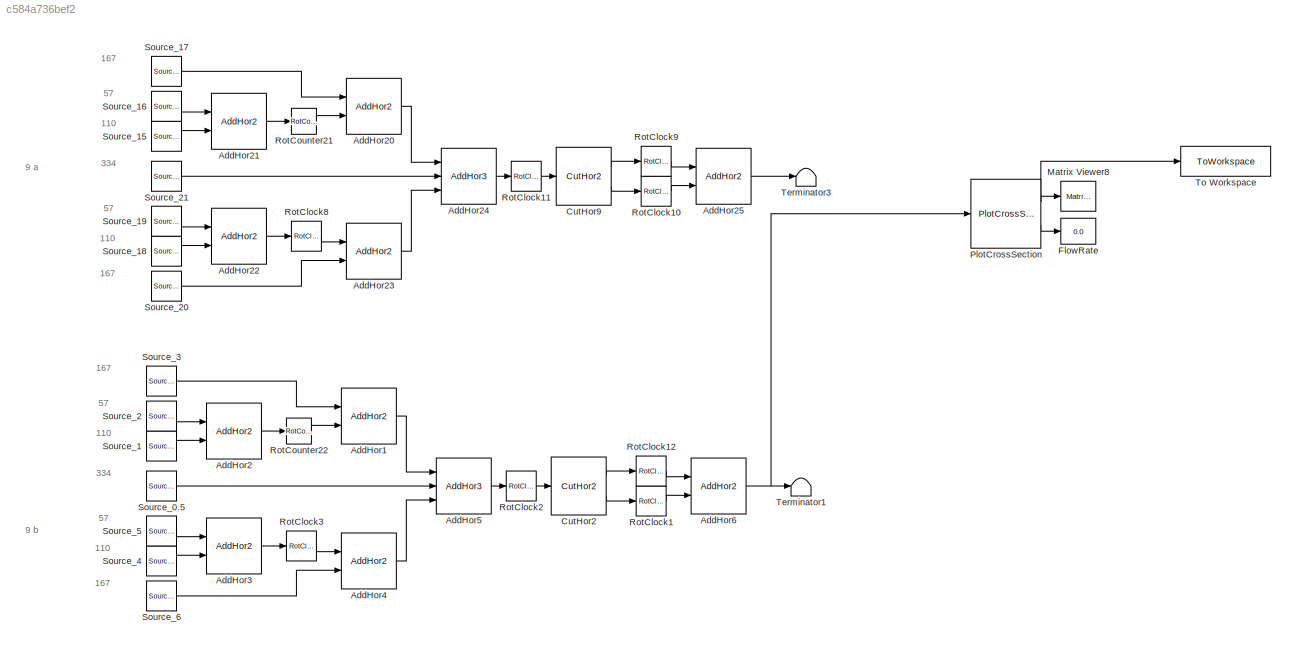
MODEL slx_c584a736bef2
KIND model
CONFIG AbsTol = auto
CONFIG EnableMultiTasking = off
CONFIG FixedStep = auto
CONFIG MaxStep = auto
CONFIG MinStep = auto
CONFIG RelTol = 1e-3
CONFIG SampleTimeConstraint = Unconstrained
CONFIG SolverName = VariableStepAuto
CONFIG StartTime = 0.0
CONFIG StopTime = 10.0
BLOCK [Reference] AddHor1  REF=myLib_CustomBoolean/AddHor2
  Ports = [2, 1]
  SourceBlock = myLib_CustomBoolean/AddHor2
  SourceProductName = Boolean_Custom_Library
BLOCK [Reference] AddHor2  REF=myLib_CustomBoolean/AddHor2
  Ports = [2, 1]
  SourceBlock = myLib_CustomBoolean/AddHor2
  SourceProductName = Boolean_Custom_Library
BLOCK [Reference] AddHor20  REF=myLib_CustomBoolean/AddHor2
  Ports = [2, 1]
  SourceBlock = myLib_CustomBoolean/AddHor2
  SourceProductName = Boolean_Custom_Library
BLOCK [Reference] AddHor21  REF=myLib_CustomBoolean/AddHor2
  Ports = [2, 1]
  SourceBlock = myLib_CustomBoolean/AddHor2
  SourceProductName = Boolean_Custom_Library
BLOCK [Reference] AddHor22  REF=myLib_CustomBoolean/AddHor2
  Ports = [2, 1]
  SourceBlock = myLib_CustomBoolean/AddHor2
  SourceProductName = Boolean_Custom_Library
BLOCK [Reference] AddHor23  REF=myLib_CustomBoolean/AddHor2
  Ports = [2, 1]
  SourceBlock = myLib_CustomBoolean/AddHor2
  SourceProductName = Boolean_Custom_Library
BLOCK [Reference] AddHor24  REF=myLib_CustomBoolean/AddHor3
  Ports = [3, 1]
  SourceBlock = myLib_CustomBoolean/AddHor3
  SourceProductName = Boolean_Custom_Library
BLOCK [Reference] AddHor25  REF=myLib_CustomBoolean/AddHor2
  Ports = [2, 1]
  SourceBlock = myLib_CustomBoolean/AddHor2
  SourceProductName = Boolean_Custom_Library
BLOCK [Reference] AddHor3  REF=myLib_CustomBoolean/AddHor2
  Ports = [2, 1]
  SourceBlock = myLib_CustomBoolean/AddHor2
  SourceProductName = Boolean_Custom_Library
BLOCK [Reference] AddHor4  REF=myLib_CustomBoolean/AddHor2
  Ports = [2, 1]
  SourceBlock = myLib_CustomBoolean/AddHor2
  SourceProductName = Boolean_Custom_Library
BLOCK [Reference] AddHor5  REF=myLib_CustomBoolean/AddHor3
  Ports = [3, 1]
  SourceBlock = myLib_CustomBoolean/AddHor3
  SourceProductName = Boolean_Custom_Library
BLOCK [Reference] AddHor6  REF=myLib_CustomBoolean/AddHor2
  Ports = [2, 1]
  SourceBlock = myLib_CustomBoolean/AddHor2
  SourceProductName = Boolean_Custom_Library
BLOCK [Reference] CutHor2  REF=myLib_CustomBoolean/CutHor2
  Ports = [1, 2]
  SourceBlock = myLib_CustomBoolean/CutHor2
  SourceProductName = Boolean_Custom_Library
BLOCK [Reference] CutHor9  REF=myLib_CustomBoolean/CutHor2
  Ports = [1, 2]
  SourceBlock = myLib_CustomBoolean/CutHor2
  SourceProductName = Boolean_Custom_Library
BLOCK [Display] FlowRate
  Decimation = 1
  Ports = [1]
BLOCK [Reference] Matrix Viewer8  REF=dspobslib/Matrix
Viewer
  Ports = [1]
  SourceBlock = dspobslib/Matrix\nViewer
  SourceProductBaseCode = DS
  SourceType = Matrix Viewer
BLOCK [Reference] PlotCrossSection  REF=myLib_CustomBoolean/PlotCrossSection
  Ports = [1, 2]
  SourceBlock = myLib_CustomBoolean/PlotCrossSection
  SourceProductName = Boolean_Custom_Library
  SourceType = SubSystem
BLOCK [Reference] RotClock1  REF=myLib_CustomBoolean/RotClock
  Ports = [1, 1]
  SourceBlock = myLib_CustomBoolean/RotClock
  SourceProductName = Boolean_Custom_Library
BLOCK [Reference] RotClock10  REF=myLib_CustomBoolean/RotClock
  Ports = [1, 1]
  SourceBlock = myLib_CustomBoolean/RotClock
  SourceProductName = Boolean_Custom_Library
BLOCK [Reference] RotClock11  REF=myLib_CustomBoolean/RotClock
  Ports = [1, 1]
  SourceBlock = myLib_CustomBoolean/RotClock
  SourceProductName = Boolean_Custom_Library
BLOCK [Reference] RotClock12  REF=myLib_CustomBoolean/RotClock
  Ports = [1, 1]
  SourceBlock = myLib_CustomBoolean/RotClock
  SourceProductName = Boolean_Custom_Library
BLOCK [Reference] RotClock2  REF=myLib_CustomBoolean/RotClock
  Ports = [1, 1]
  SourceBlock = myLib_CustomBoolean/RotClock
  SourceProductName = Boolean_Custom_Library
BLOCK [Reference] RotClock3  REF=myLib_CustomBoolean/RotClock
  Ports = [1, 1]
  SourceBlock = myLib_CustomBoolean/RotClock
  SourceProductName = Boolean_Custom_Library
BLOCK [Reference] RotClock8  REF=myLib_CustomBoolean/RotClock
  Ports = [1, 1]
  SourceBlock = myLib_CustomBoolean/RotClock
  SourceProductName = Boolean_Custom_Library
BLOCK [Reference] RotClock9  REF=myLib_CustomBoolean/RotClock
  Ports = [1, 1]
  SourceBlock = myLib_CustomBoolean/RotClock
  SourceProductName = Boolean_Custom_Library
BLOCK [Reference] RotCounter21  REF=myLib_CustomBoolean/RotCounter
  Ports = [1, 1]
  SourceBlock = myLib_CustomBoolean/RotCounter
  SourceProductName = Boolean_Custom_Library
BLOCK [Reference] RotCounter22  REF=myLib_CustomBoolean/RotCounter
  Ports = [1, 1]
  SourceBlock = myLib_CustomBoolean/RotCounter
  SourceProductName = Boolean_Custom_Library
BLOCK [Reference] Source_0.5  REF=myLib_CustomBoolean/Source_0.5
  Ports = [0, 1]
  SourceBlock = myLib_CustomBoolean/Source_0.5
  SourceProductName = Boolean_Custom_Library
BLOCK [Reference] Source_1  REF=myLib_CustomBoolean/Source_0
  Ports = [0, 1]
  SourceBlock = myLib_CustomBoolean/Source_0
  SourceProductName = Boolean_Custom_Library
BLOCK [Reference] Source_15  REF=myLib_CustomBoolean/Source_0
  Ports = [0, 1]
  SourceBlock = myLib_CustomBoolean/Source_0
  SourceProductName = Boolean_Custom_Library
BLOCK [Reference] Source_16  REF=myLib_CustomBoolean/Source_1
  Ports = [0, 1]
  SourceBlock = myLib_CustomBoolean/Source_1
  SourceProductName = Boolean_Custom_Library
BLOCK [Reference] Source_17  REF=myLib_CustomBoolean/Source_1
  Ports = [0, 1]
  SourceBlock = myLib_CustomBoolean/Source_1
  SourceProductName = Boolean_Custom_Library
BLOCK [Reference] Source_18  REF=myLib_CustomBoolean/Source_0
  Ports = [0, 1]
  SourceBlock = myLib_CustomBoolean/Source_0
  SourceProductName = Boolean_Custom_Library
BLOCK [Reference] Source_19  REF=myLib_CustomBoolean/Source_1
  Ports = [0, 1]
  SourceBlock = myLib_CustomBoolean/Source_1
  SourceProductName = Boolean_Custom_Library
BLOCK [Reference] Source_2  REF=myLib_CustomBoolean/Source_1
  Ports = [0, 1]
  SourceBlock = myLib_CustomBoolean/Source_1
  SourceProductName = Boolean_Custom_Library
BLOCK [Reference] Source_20  REF=myLib_CustomBoolean/Source_1
  Ports = [0, 1]
  SourceBlock = myLib_CustomBoolean/Source_1
  SourceProductName = Boolean_Custom_Library
BLOCK [Reference] Source_21  REF=myLib_CustomBoolean/Source_1
  Ports = [0, 1]
  SourceBlock = myLib_CustomBoolean/Source_1
  SourceProductName = Boolean_Custom_Library
BLOCK [Reference] Source_3  REF=myLib_CustomBoolean/Source_1
  Ports = [0, 1]
  SourceBlock = myLib_CustomBoolean/Source_1
  SourceProductName = Boolean_Custom_Library
BLOCK [Reference] Source_4  REF=myLib_CustomBoolean/Source_0
  Ports = [0, 1]
  SourceBlock = myLib_CustomBoolean/Source_0
  SourceProductName = Boolean_Custom_Library
BLOCK [Reference] Source_5  REF=myLib_CustomBoolean/Source_1
  Ports = [0, 1]
  SourceBlock = myLib_CustomBoolean/Source_1
  SourceProductName = Boolean_Custom_Library
BLOCK [Reference] Source_6  REF=myLib_CustomBoolean/Source_1
  Ports = [0, 1]
  SourceBlock = myLib_CustomBoolean/Source_1
  SourceProductName = Boolean_Custom_Library
BLOCK [Terminator] Terminator1
BLOCK [Terminator] Terminator3
BLOCK [ToWorkspace] To Workspace
  FixptAsFi = on
  MaxDataPoints = inf
  Ports = [1]
  SampleTime = 51
  VariableName = extrudateArray
ANNOTATION (root): 9 a
ANNOTATION (root): 9 b
ANNOTATION (root): 110
ANNOTATION (root): 167
ANNOTATION (root): 334
ANNOTATION (root): 57
LINE AddHor1:1 -> AddHor5:1
LINE AddHor20:1 -> AddHor24:1
LINE AddHor21:1 -> RotCounter21:1
LINE AddHor22:1 -> RotClock8:1
LINE AddHor23:1 -> AddHor24:3
LINE AddHor24:1 -> RotClock11:1
LINE AddHor25:1 -> Terminator3:1
LINE AddHor2:1 -> RotCounter22:1
LINE AddHor3:1 -> RotClock3:1
LINE AddHor4:1 -> AddHor5:3
LINE AddHor5:1 -> RotClock2:1
NET AddHor6:1 -> PlotCrossSection:1, Terminator1:1
LINE CutHor2:1 -> RotClock12:1
LINE CutHor2:2 -> RotClock1:1
LINE CutHor9:1 -> RotClock9:1
LINE CutHor9:2 -> RotClock10:1
NET PlotCrossSection:1 -> Matrix Viewer8:1, To Workspace:1
LINE PlotCrossSection:2 -> FlowRate:1
LINE RotClock10:1 -> AddHor25:2
LINE RotClock11:1 -> CutHor9:1
LINE RotClock12:1 -> AddHor6:1
LINE RotClock1:1 -> AddHor6:2
LINE RotClock2:1 -> CutHor2:1
LINE RotClock3:1 -> AddHor4:1
LINE RotClock8:1 -> AddHor23:1
LINE RotClock9:1 -> AddHor25:1
LINE RotCounter21:1 -> AddHor20:2
LINE RotCounter22:1 -> AddHor1:2
LINE Source_0.5:1 -> AddHor5:2
LINE Source_15:1 -> AddHor21:2
LINE Source_16:1 -> AddHor21:1
LINE Source_17:1 -> AddHor20:1
LINE Source_18:1 -> AddHor22:2
LINE Source_19:1 -> AddHor22:1
LINE Source_1:1 -> AddHor2:2
LINE Source_20:1 -> AddHor23:2
LINE Source_21:1 -> AddHor24:2
LINE Source_2:1 -> AddHor2:1
LINE Source_3:1 -> AddHor1:1
LINE Source_4:1 -> AddHor3:2
LINE Source_5:1 -> AddHor3:1
LINE Source_6:1 -> AddHor4:2
note: NET lines group one-source signal fan-out (src -> all destinations, sorted); 1:1 wires keep LINE
